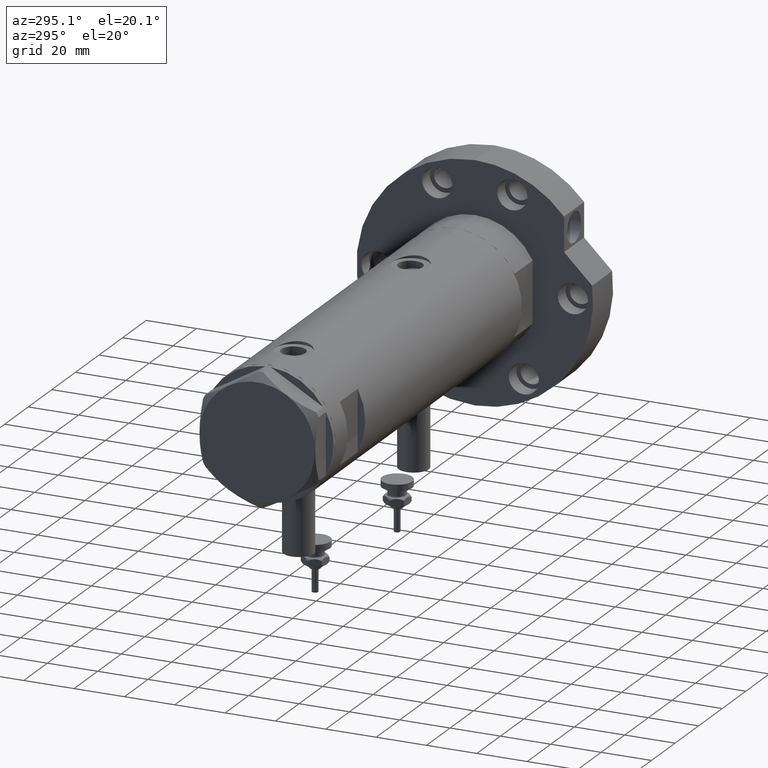
[diagram: clean part render]
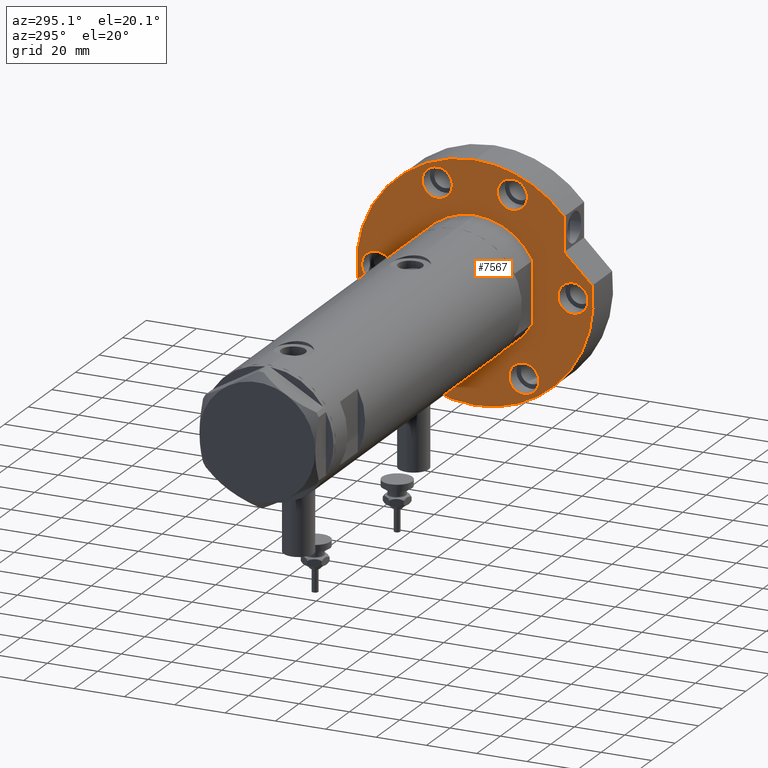
[diagram: same view with one face highlighted and labeled with its STEP entity id]
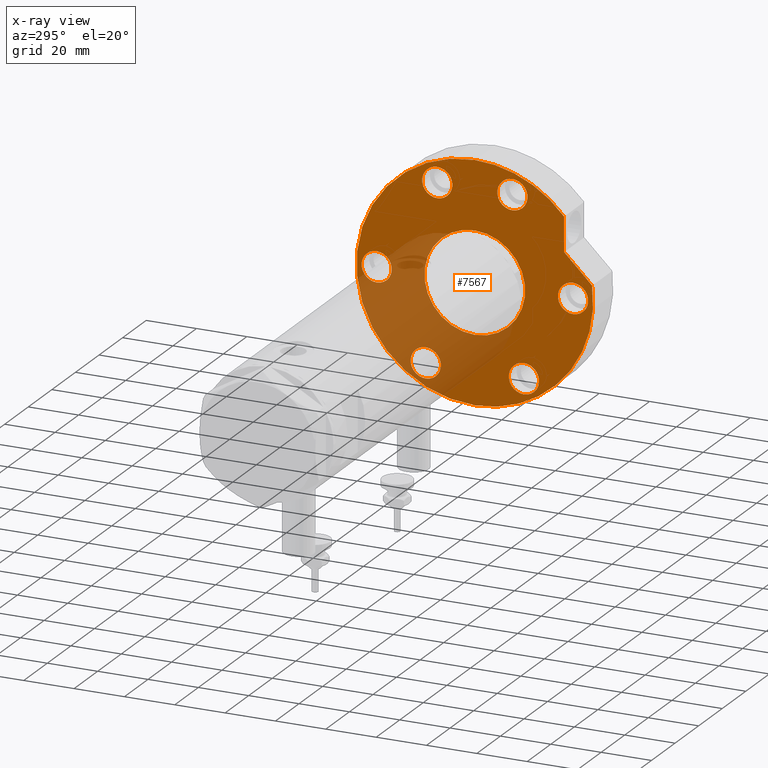
[diagram: x-ray of the same camera — body ghosted, the highlighted face saturated]
A machine part, auxiliary view. The second image highlights one B-rep face of the part: STEP entity #7567.
The next image is the same camera in x-ray: the body ghosted, the highlighted face saturated — about 30% of this face is hidden behind the body in this view.
In plain terms, the highlighted planar face has unit normal (1, 0, -0).
Its self-contained STEP definition (entity closure, byte-faithful):
#59 = VERTEX_POINT ( 'NONE', #4119 ) ;
#69 = ORIENTED_EDGE ( 'NONE', *, *, #649, .F. ) ;
#75 = DIRECTION ( 'NONE',  ( 0.000000000000000000, 0.000000000000000000, -1.000000000000000000 ) ) ;
#138 = CIRCLE ( 'NONE', #4638, 46.99999999999999289 ) ;
#319 = VERTEX_POINT ( 'NONE', #6162 ) ;
#343 = EDGE_LOOP ( 'NONE', ( #4521, #4117 ) ) ;
#355 = DIRECTION ( 'NONE',  ( 1.000000000000000000, -1.019675812477181606E-15, 0.000000000000000000 ) ) ;
#376 = DIRECTION ( 'NONE',  ( 0.000000000000000000, 0.000000000000000000, -1.000000000000000000 ) ) ;
#447 = DIRECTION ( 'NONE',  ( 0.000000000000000000, 0.000000000000000000, -1.000000000000000000 ) ) ;
#487 = DIRECTION ( 'NONE',  ( 0.000000000000000000, 0.000000000000000000, -1.000000000000000000 ) ) ;
#503 = CARTESIAN_POINT ( 'NONE',  ( 30.83217135699462830, 35.47361286101148892, 0.000000000000000000 ) ) ;
#521 = CARTESIAN_POINT ( 'NONE',  ( 0.000000000000000000, 0.000000000000000000, 0.000000000000000000 ) ) ;
#548 = VERTEX_POINT ( 'NONE', #3440 ) ;
#641 = ORIENTED_EDGE ( 'NONE', *, *, #5884, .F. ) ;
#649 = EDGE_CURVE ( 'NONE', #3858, #4809, #7604, .T. ) ;
#749 = EDGE_CURVE ( 'NONE', #878, #6229, #4917, .T. ) ;
#752 = DIRECTION ( 'NONE',  ( 0.000000000000000000, 0.000000000000000000, -1.000000000000000000 ) ) ;
#767 = EDGE_CURVE ( 'NONE', #4501, #1338, #5178, .T. ) ;
#774 = CARTESIAN_POINT ( 'NONE',  ( 6.000000000000000888, 39.00000000000000000, 0.000000000000000000 ) ) ;
#804 = CARTESIAN_POINT ( 'NONE',  ( 36.03130176794011419, -14.92465386223865842, 0.000000000000000000 ) ) ;
#819 = CARTESIAN_POINT ( 'NONE',  ( 0.000000000000000000, 0.000000000000000000, 0.000000000000000000 ) ) ;
#878 = VERTEX_POINT ( 'NONE', #7063 ) ;
#895 = CARTESIAN_POINT ( 'NONE',  ( 36.03130176794011419, 14.92465386223865842, 0.000000000000000000 ) ) ;
#933 = AXIS2_PLACEMENT_3D ( 'NONE', #5634, #7392, #3152 ) ;
#995 = CARTESIAN_POINT ( 'NONE',  ( 17.22217135699460755, 35.47361286101150313, 0.000000000000000000 ) ) ;
#1082 = CARTESIAN_POINT ( 'NONE',  ( 0.000000000000000000, 0.000000000000000000, 0.000000000000000000 ) ) ;
#1141 = VERTEX_POINT ( 'NONE', #4489 ) ;
#1187 = AXIS2_PLACEMENT_3D ( 'NONE', #3514, #447, #1393 ) ;
#1261 = CARTESIAN_POINT ( 'NONE',  ( 42.03130176794011419, 14.92465386223865842, 0.000000000000000000 ) ) ;
#1305 = EDGE_CURVE ( 'NONE', #2310, #548, #6597, .T. ) ;
#1338 = VERTEX_POINT ( 'NONE', #7097 ) ;
#1393 = DIRECTION ( 'NONE',  ( -1.000000000000000000, 0.000000000000000000, 0.000000000000000000 ) ) ;
#1412 = CIRCLE ( 'NONE', #5917, 46.99999999999999289 ) ;
#1415 = EDGE_LOOP ( 'NONE', ( #6551, #4330 ) ) ;
#1458 = CARTESIAN_POINT ( 'NONE',  ( 36.03130176794011419, 14.92465386223865842, 0.000000000000000000 ) ) ;
#1506 = CARTESIAN_POINT ( 'NONE',  ( 0.000000000000000000, -39.00000000000000000, 0.000000000000000000 ) ) ;
#1509 = ORIENTED_EDGE ( 'NONE', *, *, #3577, .T. ) ;
#1564 = ORIENTED_EDGE ( 'NONE', *, *, #1640, .F. ) ;
#1578 = AXIS2_PLACEMENT_3D ( 'NONE', #3002, #5455, #4235 ) ;
#1591 = EDGE_CURVE ( 'NONE', #7949, #2241, #4600, .T. ) ;
#1594 = EDGE_LOOP ( 'NONE', ( #2539, #6898 ) ) ;
#1607 = LINE ( 'NONE', #6631, #4360 ) ;
#1640 = EDGE_CURVE ( 'NONE', #6923, #6886, #7889, .T. ) ;
#1657 = EDGE_CURVE ( 'NONE', #5830, #1141, #2112, .T. ) ;
#1688 = FACE_BOUND ( 'NONE', #1594, .T. ) ;
#1773 = CARTESIAN_POINT ( 'NONE',  ( 0.000000000000000000, 0.000000000000000000, 0.000000000000000000 ) ) ;
#1859 = DIRECTION ( 'NONE',  ( 0.000000000000000000, 0.000000000000000000, 1.000000000000000000 ) ) ;
#1883 = CARTESIAN_POINT ( 'NONE',  ( 0.000000000000000000, 39.00000000000000000, 0.000000000000000000 ) ) ;
#1954 = CARTESIAN_POINT ( 'NONE',  ( 17.22217135699461110, 35.47361286101150313, 0.000000000000000000 ) ) ;
#2069 = EDGE_LOOP ( 'NONE', ( #2247, #1509, #1564, #7609, #2435 ) ) ;
#2112 = CIRCLE ( 'NONE', #6736, 6.000000000000005329 ) ;
#2210 = AXIS2_PLACEMENT_3D ( 'NONE', #1458, #4365, #3929 ) ;
#2223 = CARTESIAN_POINT ( 'NONE',  ( -33.77499074759315079, 19.49999999999992539, 0.000000000000000000 ) ) ;
#2226 = CARTESIAN_POINT ( 'NONE',  ( -33.77499074759302289, -19.50000000000015277, 0.000000000000000000 ) ) ;
#2241 = VERTEX_POINT ( 'NONE', #995 ) ;
#2247 = ORIENTED_EDGE ( 'NONE', *, *, #1591, .T. ) ;
#2310 = VERTEX_POINT ( 'NONE', #1261 ) ;
#2435 = ORIENTED_EDGE ( 'NONE', *, *, #5094, .F. ) ;
#2490 = EDGE_LOOP ( 'NONE', ( #6130, #5632 ) ) ;
#2522 = EDGE_CURVE ( 'NONE', #1338, #4501, #6653, .T. ) ;
#2536 = DIRECTION ( 'NONE',  ( 1.000000000000000000, 0.000000000000000000, 0.000000000000000000 ) ) ;
#2539 = ORIENTED_EDGE ( 'NONE', *, *, #1657, .F. ) ;
#2559 = AXIS2_PLACEMENT_3D ( 'NONE', #521, #5953, #3508 ) ;
#2577 = CIRCLE ( 'NONE', #7067, 6.000000000000000888 ) ;
#2835 = DIRECTION ( 'NONE',  ( 0.000000000000000000, 0.000000000000000000, -1.000000000000000000 ) ) ;
#2890 = DIRECTION ( 'NONE',  ( -1.000000000000000000, 0.000000000000000000, 0.000000000000000000 ) ) ;
#2914 = FACE_OUTER_BOUND ( 'NONE', #2069, .T. ) ;
#2950 = FACE_BOUND ( 'NONE', #7000, .T. ) ;
#2989 = FACE_BOUND ( 'NONE', #343, .T. ) ;
#3002 = CARTESIAN_POINT ( 'NONE',  ( 0.000000000000000000, 0.000000000000000000, 0.000000000000000000 ) ) ;
#3023 = EDGE_LOOP ( 'NONE', ( #7900, #641 ) ) ;
#3100 = AXIS2_PLACEMENT_3D ( 'NONE', #4435, #6912, #6272 ) ;
#3121 = CARTESIAN_POINT ( 'NONE',  ( -6.000000000000000000, -39.00000000000000000, 0.000000000000000000 ) ) ;
#3140 = VERTEX_POINT ( 'NONE', #4393 ) ;
#3141 = CIRCLE ( 'NONE', #1187, 6.000000000000005329 ) ;
#3152 = DIRECTION ( 'NONE',  ( -1.000000000000000000, 0.000000000000000000, 0.000000000000000000 ) ) ;
#3217 = DIRECTION ( 'NONE',  ( -1.000000000000000000, 0.000000000000000000, 0.000000000000000000 ) ) ;
#3302 = CARTESIAN_POINT ( 'NONE',  ( -27.77499074759315434, 19.49999999999992539, 0.000000000000000000 ) ) ;
#3394 = AXIS2_PLACEMENT_3D ( 'NONE', #1082, #5443, #7752 ) ;
#3440 = CARTESIAN_POINT ( 'NONE',  ( 30.03130176794011774, 14.92465386223865842, 0.000000000000000000 ) ) ;
#3443 = CARTESIAN_POINT ( 'NONE',  ( 0.000000000000000000, 39.00000000000000000, 0.000000000000000000 ) ) ;
#3480 = EDGE_CURVE ( 'NONE', #59, #319, #4101, .T. ) ;
#3485 = DIRECTION ( 'NONE',  ( 0.000000000000000000, 0.000000000000000000, 1.000000000000000000 ) ) ;
#3508 = DIRECTION ( 'NONE',  ( 1.000000000000000000, 0.000000000000000000, 0.000000000000000000 ) ) ;
#3514 = CARTESIAN_POINT ( 'NONE',  ( -33.77499074759302289, -19.50000000000015277, 0.000000000000000000 ) ) ;
#3577 = EDGE_CURVE ( 'NONE', #2241, #6886, #1607, .T. ) ;
#3641 = AXIS2_PLACEMENT_3D ( 'NONE', #2223, #2835, #4598 ) ;
#3858 = VERTEX_POINT ( 'NONE', #3302 ) ;
#3875 = DIRECTION ( 'NONE',  ( 0.000000000000000000, 0.000000000000000000, 1.000000000000000000 ) ) ;
#3929 = DIRECTION ( 'NONE',  ( -1.000000000000000000, 0.000000000000000000, 0.000000000000000000 ) ) ;
#4055 = AXIS2_PLACEMENT_3D ( 'NONE', #1773, #3485, #4804 ) ;
#4076 = CARTESIAN_POINT ( 'NONE',  ( -39.77499074759315079, 19.49999999999992539, 0.000000000000000000 ) ) ;
#4101 = CIRCLE ( 'NONE', #2559, 20.00000000000000000 ) ;
#4117 = ORIENTED_EDGE ( 'NONE', *, *, #1305, .F. ) ;
#4119 = CARTESIAN_POINT ( 'NONE',  ( -20.00000000000000000, 2.449293598294706513E-15, 0.000000000000000000 ) ) ;
#4190 = EDGE_LOOP ( 'NONE', ( #4253, #6507 ) ) ;
#4235 = DIRECTION ( 'NONE',  ( 1.000000000000000000, 0.000000000000000000, 0.000000000000000000 ) ) ;
#4236 = DIRECTION ( 'NONE',  ( -1.000000000000000000, 0.000000000000000000, 0.000000000000000000 ) ) ;
#4253 = ORIENTED_EDGE ( 'NONE', *, *, #5083, .F. ) ;
#4271 = CARTESIAN_POINT ( 'NONE',  ( -33.77499074759315079, 19.49999999999992539, 0.000000000000000000 ) ) ;
#4330 = ORIENTED_EDGE ( 'NONE', *, *, #3480, .T. ) ;
#4345 = VERTEX_POINT ( 'NONE', #5346 ) ;
#4360 = VECTOR ( 'NONE', #355, 1000.000000000000000 ) ;
#4365 = DIRECTION ( 'NONE',  ( 0.000000000000000000, 0.000000000000000000, -1.000000000000000000 ) ) ;
#4390 = AXIS2_PLACEMENT_3D ( 'NONE', #3443, #7605, #7088 ) ;
#4393 = CARTESIAN_POINT ( 'NONE',  ( -46.99999999999999289, 0.000000000000000000, 0.000000000000000000 ) ) ;
#4412 = AXIS2_PLACEMENT_3D ( 'NONE', #804, #4954, #5076 ) ;
#4424 = DIRECTION ( 'NONE',  ( 0.7071067811865511255, -0.7071067811865440200, -0.000000000000000000 ) ) ;
#4435 = CARTESIAN_POINT ( 'NONE',  ( 36.03130176794011419, -14.92465386223865842, 0.000000000000000000 ) ) ;
#4447 = CARTESIAN_POINT ( 'NONE',  ( 46.99999999999999289, 5.755839955992559063E-15, 0.000000000000000000 ) ) ;
#4470 = CARTESIAN_POINT ( 'NONE',  ( 0.000000000000000000, 0.000000000000000000, 0.000000000000000000 ) ) ;
#4489 = CARTESIAN_POINT ( 'NONE',  ( -27.77499074759301578, -19.50000000000015277, 0.000000000000000000 ) ) ;
#4501 = VERTEX_POINT ( 'NONE', #3121 ) ;
#4521 = ORIENTED_EDGE ( 'NONE', *, *, #7039, .F. ) ;
#4598 = DIRECTION ( 'NONE',  ( -1.000000000000000000, 0.000000000000000000, 0.000000000000000000 ) ) ;
#4600 = LINE ( 'NONE', #1954, #5594 ) ;
#4638 = AXIS2_PLACEMENT_3D ( 'NONE', #819, #1859, #5732 ) ;
#4662 = CIRCLE ( 'NONE', #2210, 5.999999999999998224 ) ;
#4804 = DIRECTION ( 'NONE',  ( 1.000000000000000000, 0.000000000000000000, 0.000000000000000000 ) ) ;
#4809 = VERTEX_POINT ( 'NONE', #4076 ) ;
#4889 = CIRCLE ( 'NONE', #3100, 5.999999999999998224 ) ;
#4917 = CIRCLE ( 'NONE', #4412, 5.999999999999998224 ) ;
#4922 = CIRCLE ( 'NONE', #1578, 20.00000000000000000 ) ;
#4954 = DIRECTION ( 'NONE',  ( 0.000000000000000000, 0.000000000000000000, -1.000000000000000000 ) ) ;
#5076 = DIRECTION ( 'NONE',  ( -1.000000000000000000, 0.000000000000000000, 0.000000000000000000 ) ) ;
#5083 = EDGE_CURVE ( 'NONE', #6229, #878, #4889, .T. ) ;
#5094 = EDGE_CURVE ( 'NONE', #7949, #3140, #1412, .T. ) ;
#5109 = EDGE_CURVE ( 'NONE', #4345, #7076, #2577, .T. ) ;
#5178 = CIRCLE ( 'NONE', #933, 6.000000000000000000 ) ;
#5346 = CARTESIAN_POINT ( 'NONE',  ( -6.000000000000000888, 39.00000000000000000, 0.000000000000000000 ) ) ;
#5443 = DIRECTION ( 'NONE',  ( 0.000000000000000000, 0.000000000000000000, 1.000000000000000000 ) ) ;
#5444 = AXIS2_PLACEMENT_3D ( 'NONE', #4271, #487, #7914 ) ;
#5455 = DIRECTION ( 'NONE',  ( 0.000000000000000000, 0.000000000000000000, 1.000000000000000000 ) ) ;
#5480 = FACE_BOUND ( 'NONE', #3023, .T. ) ;
#5594 = VECTOR ( 'NONE', #4424, 999.9999999999998863 ) ;
#5632 = ORIENTED_EDGE ( 'NONE', *, *, #2522, .F. ) ;
#5634 = CARTESIAN_POINT ( 'NONE',  ( 0.000000000000000000, -39.00000000000000000, 0.000000000000000000 ) ) ;
#5732 = DIRECTION ( 'NONE',  ( 1.000000000000000000, 0.000000000000000000, 0.000000000000000000 ) ) ;
#5756 = EDGE_CURVE ( 'NONE', #3140, #6923, #138, .T. ) ;
#5818 = CIRCLE ( 'NONE', #3641, 5.999999999999998224 ) ;
#5830 = VERTEX_POINT ( 'NONE', #7403 ) ;
#5884 = EDGE_CURVE ( 'NONE', #7076, #4345, #6441, .T. ) ;
#5917 = AXIS2_PLACEMENT_3D ( 'NONE', #4470, #3875, #2536 ) ;
#5953 = DIRECTION ( 'NONE',  ( 0.000000000000000000, 0.000000000000000000, 1.000000000000000000 ) ) ;
#5994 = FACE_BOUND ( 'NONE', #4190, .T. ) ;
#6035 = FACE_BOUND ( 'NONE', #2490, .T. ) ;
#6113 = FACE_BOUND ( 'NONE', #1415, .T. ) ;
#6130 = ORIENTED_EDGE ( 'NONE', *, *, #767, .F. ) ;
#6162 = CARTESIAN_POINT ( 'NONE',  ( 20.00000000000000000, 0.000000000000000000, 0.000000000000000000 ) ) ;
#6229 = VERTEX_POINT ( 'NONE', #7552 ) ;
#6272 = DIRECTION ( 'NONE',  ( -1.000000000000000000, 0.000000000000000000, 0.000000000000000000 ) ) ;
#6336 = AXIS2_PLACEMENT_3D ( 'NONE', #895, #376, #2890 ) ;
#6432 = CARTESIAN_POINT ( 'NONE',  ( 6.092310621118299352, 46.60347359688769586, 0.000000000000000000 ) ) ;
#6441 = CIRCLE ( 'NONE', #4390, 6.000000000000000888 ) ;
#6507 = ORIENTED_EDGE ( 'NONE', *, *, #749, .F. ) ;
#6551 = ORIENTED_EDGE ( 'NONE', *, *, #7389, .T. ) ;
#6597 = CIRCLE ( 'NONE', #6336, 5.999999999999998224 ) ;
#6602 = PLANE ( 'NONE',  #3394 ) ;
#6631 = CARTESIAN_POINT ( 'NONE',  ( 17.22217135699461110, 35.47361286101150313, 0.000000000000000000 ) ) ;
#6653 = CIRCLE ( 'NONE', #7161, 6.000000000000000000 ) ;
#6736 = AXIS2_PLACEMENT_3D ( 'NONE', #2226, #7208, #4236 ) ;
#6805 = ORIENTED_EDGE ( 'NONE', *, *, #7100, .F. ) ;
#6886 = VERTEX_POINT ( 'NONE', #503 ) ;
#6898 = ORIENTED_EDGE ( 'NONE', *, *, #7677, .F. ) ;
#6912 = DIRECTION ( 'NONE',  ( 0.000000000000000000, 0.000000000000000000, -1.000000000000000000 ) ) ;
#6923 = VERTEX_POINT ( 'NONE', #4447 ) ;
#7000 = EDGE_LOOP ( 'NONE', ( #6805, #69 ) ) ;
#7039 = EDGE_CURVE ( 'NONE', #548, #2310, #4662, .T. ) ;
#7063 = CARTESIAN_POINT ( 'NONE',  ( 42.03130176794011419, -14.92465386223865842, 0.000000000000000000 ) ) ;
#7067 = AXIS2_PLACEMENT_3D ( 'NONE', #1883, #75, #7551 ) ;
#7076 = VERTEX_POINT ( 'NONE', #774 ) ;
#7088 = DIRECTION ( 'NONE',  ( -1.000000000000000000, 0.000000000000000000, 0.000000000000000000 ) ) ;
#7097 = CARTESIAN_POINT ( 'NONE',  ( 6.000000000000000000, -39.00000000000000000, 0.000000000000000000 ) ) ;
#7100 = EDGE_CURVE ( 'NONE', #4809, #3858, #5818, .T. ) ;
#7161 = AXIS2_PLACEMENT_3D ( 'NONE', #1506, #752, #3217 ) ;
#7208 = DIRECTION ( 'NONE',  ( 0.000000000000000000, 0.000000000000000000, -1.000000000000000000 ) ) ;
#7389 = EDGE_CURVE ( 'NONE', #319, #59, #4922, .T. ) ;
#7392 = DIRECTION ( 'NONE',  ( 0.000000000000000000, 0.000000000000000000, -1.000000000000000000 ) ) ;
#7403 = CARTESIAN_POINT ( 'NONE',  ( -39.77499074759302289, -19.50000000000015277, 0.000000000000000000 ) ) ;
#7551 = DIRECTION ( 'NONE',  ( -1.000000000000000000, 0.000000000000000000, 0.000000000000000000 ) ) ;
#7552 = CARTESIAN_POINT ( 'NONE',  ( 30.03130176794011774, -14.92465386223865842, 0.000000000000000000 ) ) ;
#7567 = ADVANCED_FACE ( 'NONE', ( #5480, #2989, #5994, #6035, #1688, #2950, #6113, #2914 ), #6602, .F. ) ;
#7604 = CIRCLE ( 'NONE', #5444, 5.999999999999998224 ) ;
#7605 = DIRECTION ( 'NONE',  ( 0.000000000000000000, 0.000000000000000000, -1.000000000000000000 ) ) ;
#7609 = ORIENTED_EDGE ( 'NONE', *, *, #5756, .F. ) ;
#7677 = EDGE_CURVE ( 'NONE', #1141, #5830, #3141, .T. ) ;
#7752 = DIRECTION ( 'NONE',  ( 1.000000000000000000, 0.000000000000000000, -0.000000000000000000 ) ) ;
#7889 = CIRCLE ( 'NONE', #4055, 46.99999999999999289 ) ;
#7900 = ORIENTED_EDGE ( 'NONE', *, *, #5109, .F. ) ;
#7914 = DIRECTION ( 'NONE',  ( -1.000000000000000000, 0.000000000000000000, 0.000000000000000000 ) ) ;
#7949 = VERTEX_POINT ( 'NONE', #6432 ) ;